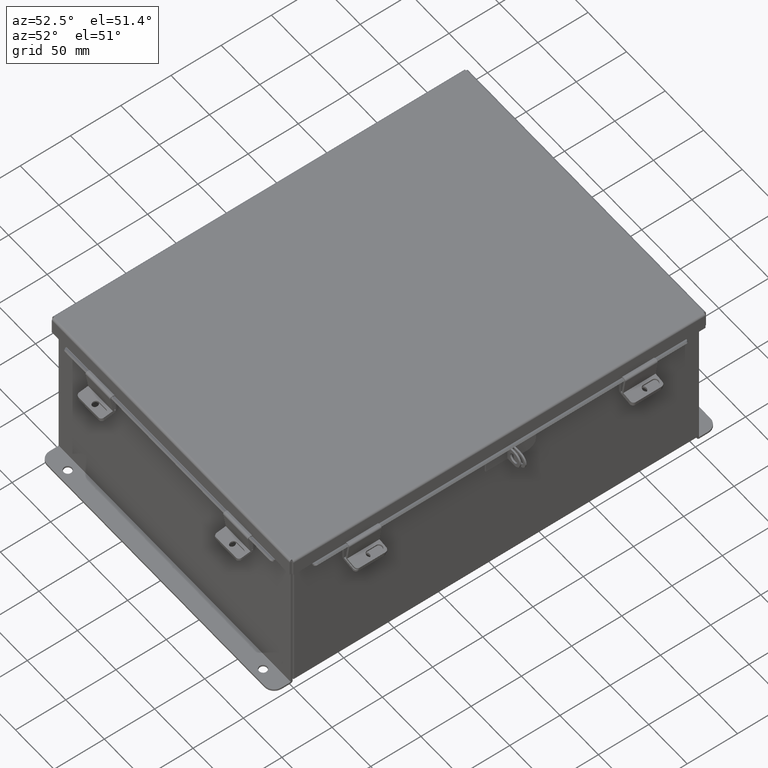
[diagram: clean part render]
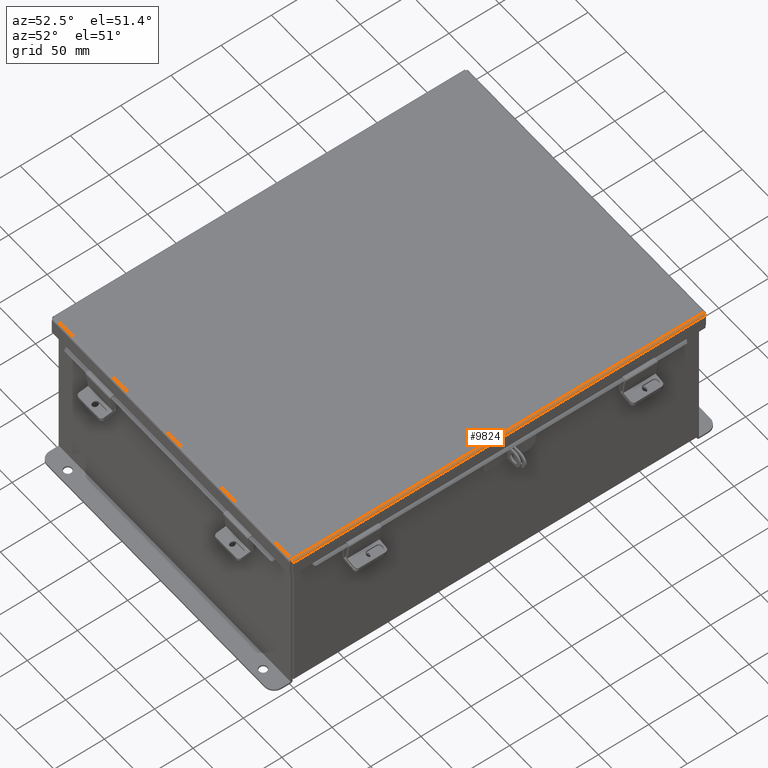
[diagram: same view with one face highlighted and labeled with its STEP entity id]
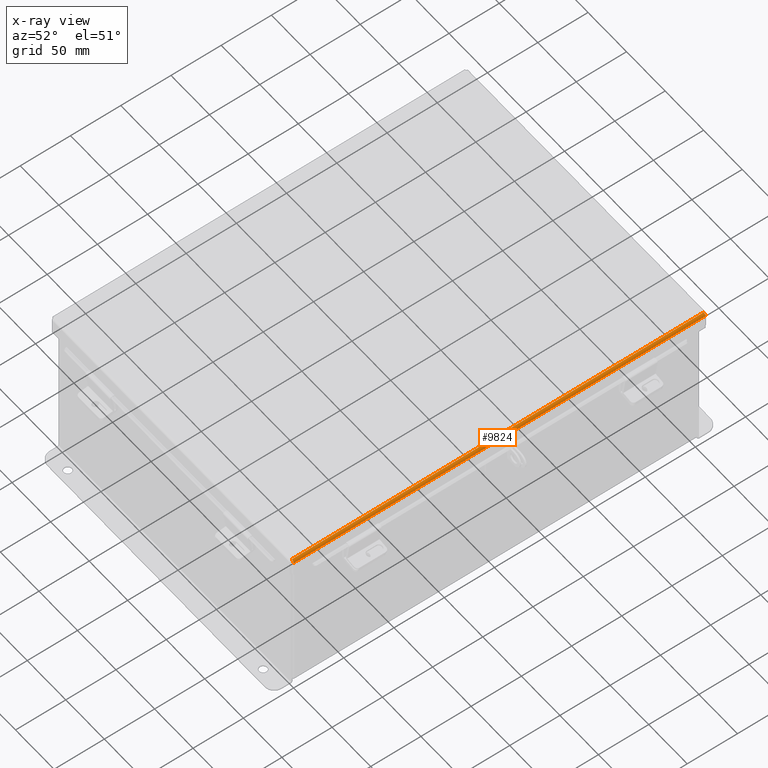
[diagram: x-ray of the same camera — body ghosted, the highlighted face saturated]
A machine part, auxiliary view. The second image highlights one B-rep face of the part: STEP entity #9824.
The next image is the same camera in x-ray: the body ghosted, the highlighted face saturated — about 0% of this face is hidden behind the body in this view.
In plain terms, the highlighted cylindrical surface (edge-blend (fillet) strip) has radius 2.2276 mm, axis along (-0, -1, -0).
Its self-contained STEP definition (entity closure, byte-faithful):
#276 = CARTESIAN_POINT ( 'NONE',  ( -6.156250000000017800, 8.074478932188135600, 0.01300000000000010700 ) ) ;
#482 = DIRECTION ( 'NONE',  ( 2.916455381721308100E-030, 1.000000000000000000, 6.698784352282061800E-017 ) ) ;
#520 = CARTESIAN_POINT ( 'NONE',  ( -6.153967403743830100, 8.073490776823446100, -0.009955289458309552600 ) ) ;
#1416 = CARTESIAN_POINT ( 'NONE',  ( -6.156250000000017800, -8.073984854505788200, 0.001520096845006759300 ) ) ;
#1521 = DIRECTION ( 'NONE',  ( -1.000000000000000000, 0.0000000000000000000, -3.577373637655407700E-015 ) ) ;
#1878 = FACE_OUTER_BOUND ( 'NONE', #16716, .T. ) ;
#2004 = VECTOR ( 'NONE', #2447, 39.37007874015748100 ) ;
#2096 = CARTESIAN_POINT ( 'NONE',  ( -6.156250000000017800, 8.074478932188135600, 0.01300000000000010700 ) ) ;
#2447 = DIRECTION ( 'NONE',  ( 3.347226646114128200E-030, 1.000000000000000000, 8.208677865579519900E-017 ) ) ;
#3139 = CARTESIAN_POINT ( 'NONE',  ( -6.068550000000017000, 8.068550000000000100, -0.07469999999999907300 ) ) ;
#3505 = VECTOR ( 'NONE', #482, 39.37007874015748100 ) ;
#3577 = CARTESIAN_POINT ( 'NONE',  ( -6.080029903155008200, 8.069044077682344000, -0.07470000000000007200 ) ) ;
#3720 = EDGE_CURVE ( 'NONE', #5488, #14365, #6132, .T. ) ;
#4279 = ORIENTED_EDGE ( 'NONE', *, *, #9398, .F. ) ;
#4526 = CARTESIAN_POINT ( 'NONE',  ( -6.153967403743831000, -8.073490776823446100, -0.009955289458309512700 ) ) ;
#5488 = VERTEX_POINT ( 'NONE', #11248 ) ;
#6098 = CARTESIAN_POINT ( 'NONE',  ( -6.138680782078338000, -8.072008543776412600, -0.04089574734180102800 ) ) ;
#6132 = LINE ( 'NONE', #8613, #2004 ) ;
#6702 = CARTESIAN_POINT ( 'NONE',  ( -6.068550000000017000, 8.068550000000000100, -0.07469999999999907300 ) ) ;
#7154 = LINE ( 'NONE', #14478, #3505 ) ;
#7648 = CARTESIAN_POINT ( 'NONE',  ( -6.112717384578546700, -8.070526310729377400, -0.06363106625866966900 ) ) ;
#7705 = CARTESIAN_POINT ( 'NONE',  ( -6.068550000000017000, -8.074478932188135600, 0.01299999999999901400 ) ) ;
#8260 = CARTESIAN_POINT ( 'NONE',  ( -6.122445747341816800, 8.071020388411723100, -0.05713078207832068800 ) ) ;
#8613 = CARTESIAN_POINT ( 'NONE',  ( -6.068550000000017000, -8.074478932188135600, -0.07470000000000125200 ) ) ;
#9214 = CARTESIAN_POINT ( 'NONE',  ( -6.080029903155010900, -8.069044077682344000, -0.07470000000000139000 ) ) ;
#9398 = EDGE_CURVE ( 'NONE', #14365, #14502, #12874, .T. ) ;
#9824 = ADVANCED_FACE ( 'NONE', ( #1878 ), #12796, .T. ) ;
#9828 = CARTESIAN_POINT ( 'NONE',  ( -6.145181066258684800, 8.072502621458756500, -0.03116738457852839800 ) ) ;
#9904 = AXIS2_PLACEMENT_3D ( 'NONE', #7705, #10806, #1521 ) ;
#10254 = VERTEX_POINT ( 'NONE', #16579 ) ;
#10806 = DIRECTION ( 'NONE',  ( -3.347226646114128200E-030, -1.000000000000000000, -8.208677865579519900E-017 ) ) ;
#11248 = CARTESIAN_POINT ( 'NONE',  ( -6.068550000000017000, -8.068550000000000100, -0.07470000000000125200 ) ) ;
#11363 = CARTESIAN_POINT ( 'NONE',  ( -6.156250000000017800, 8.073984854505791700, 0.001520096845006540700 ) ) ;
#12225 = B_SPLINE_CURVE_WITH_KNOTS ( 'NONE', 3,
 ( #12239, #1416, #4526, #15400, #6098, #16958, #7648, #18536, #9214, #20106 ),
 .UNSPECIFIED., .F., .F.,
 ( 4, 2, 2, 2, 4 ),
 ( 0.0000000000000000000, 0.2500000000000000000, 0.5000000000000000000, 0.7500000000000000000, 1.000000000000000000 ),
 .UNSPECIFIED. ) ;
#12239 = CARTESIAN_POINT ( 'NONE',  ( -6.156250000000017800, -8.074478932188135600, 0.01299999999999901400 ) ) ;
#12796 = CYLINDRICAL_SURFACE ( 'NONE', #9904, 0.08770000000000026400 ) ;
#12867 = CARTESIAN_POINT ( 'NONE',  ( -6.091505289458327300, 8.069538155364691400, -0.07241740374381139300 ) ) ;
#12874 = B_SPLINE_CURVE_WITH_KNOTS ( 'NONE', 3,
 ( #6702, #3577, #12867, #17557, #8260, #19164, #9828, #520, #11363, #2096 ),
 .UNSPECIFIED., .F., .F.,
 ( 4, 2, 2, 2, 4 ),
 ( 0.0000000000000000000, 0.2500000000000000000, 0.5000000000000000000, 0.7500000000000000000, 1.000000000000000000 ),
 .UNSPECIFIED. ) ;
#13023 = EDGE_CURVE ( 'NONE', #10254, #14502, #7154, .T. ) ;
#13359 = EDGE_CURVE ( 'NONE', #10254, #5488, #12225, .T. ) ;
#14365 = VERTEX_POINT ( 'NONE', #3139 ) ;
#14478 = CARTESIAN_POINT ( 'NONE',  ( -6.156250000000017800, 8.156250000000000000, 0.01300000000000010700 ) ) ;
#14502 = VERTEX_POINT ( 'NONE', #276 ) ;
#15218 = ORIENTED_EDGE ( 'NONE', *, *, #13359, .F. ) ;
#15400 = CARTESIAN_POINT ( 'NONE',  ( -6.145181066258684800, -8.072502621458754700, -0.03116738457852874500 ) ) ;
#16579 = CARTESIAN_POINT ( 'NONE',  ( -6.156250000000017800, -8.074478932188135600, 0.01299999999999901400 ) ) ;
#16716 = EDGE_LOOP ( 'NONE', ( #20082, #15218, #18407, #4279 ) ) ;
#16958 = CARTESIAN_POINT ( 'NONE',  ( -6.122445747341815900, -8.071020388411723100, -0.05713078207832158300 ) ) ;
#17557 = CARTESIAN_POINT ( 'NONE',  ( -6.112717384578543200, 8.070526310729377400, -0.06363106625866860000 ) ) ;
#18407 = ORIENTED_EDGE ( 'NONE', *, *, #13023, .T. ) ;
#18536 = CARTESIAN_POINT ( 'NONE',  ( -6.091505289458327300, -8.069538155364687900, -0.07241740374381264200 ) ) ;
#19164 = CARTESIAN_POINT ( 'NONE',  ( -6.138680782078338000, 8.072008543776412600, -0.04089574734180047300 ) ) ;
#20082 = ORIENTED_EDGE ( 'NONE', *, *, #3720, .F. ) ;
#20106 = CARTESIAN_POINT ( 'NONE',  ( -6.068550000000017000, -8.068550000000000100, -0.07470000000000125200 ) ) ;